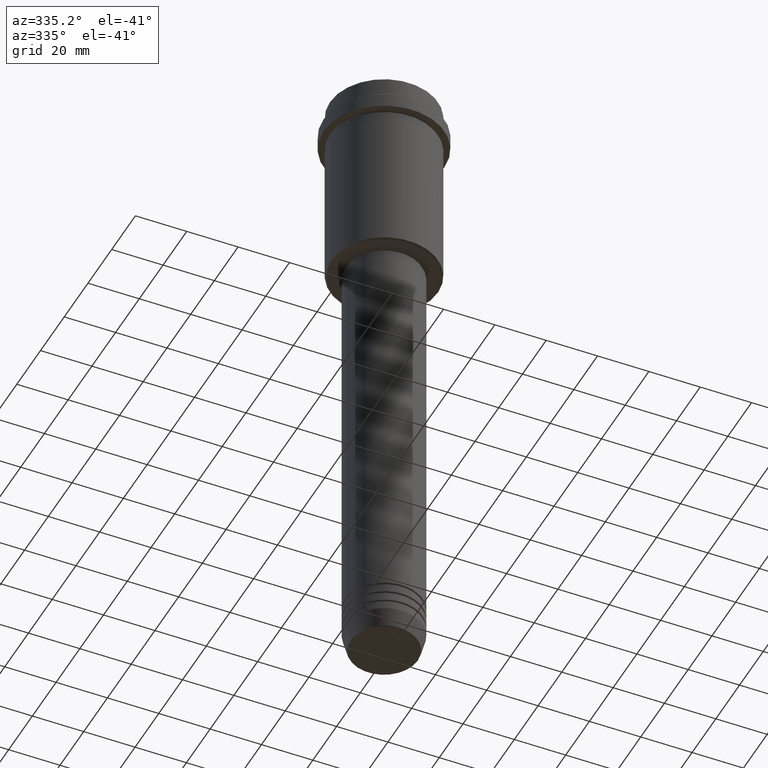
[diagram: clean part render]
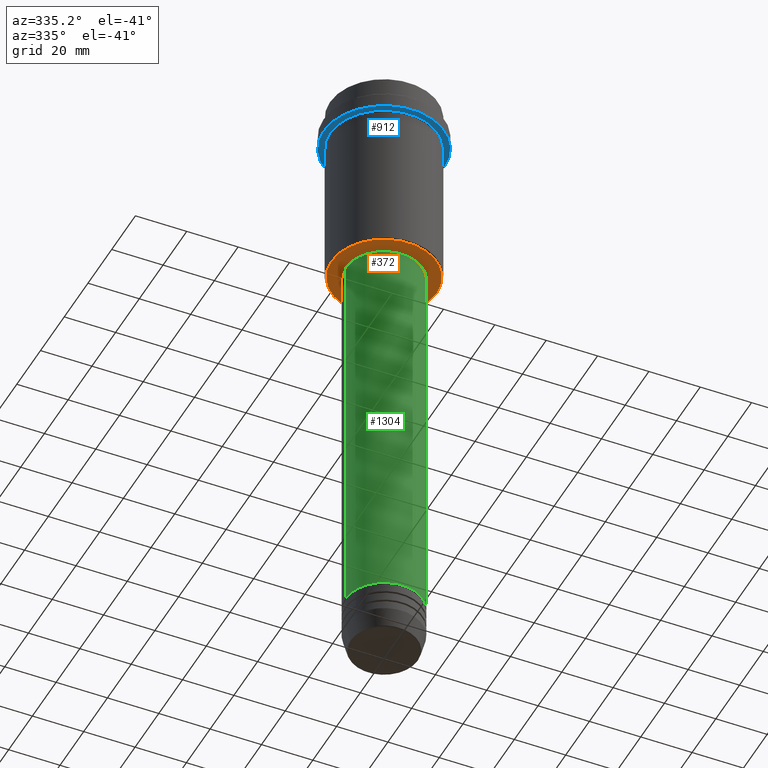
[diagram: same view with three faces highlighted in distinct colors, each labeled with its STEP entity id]
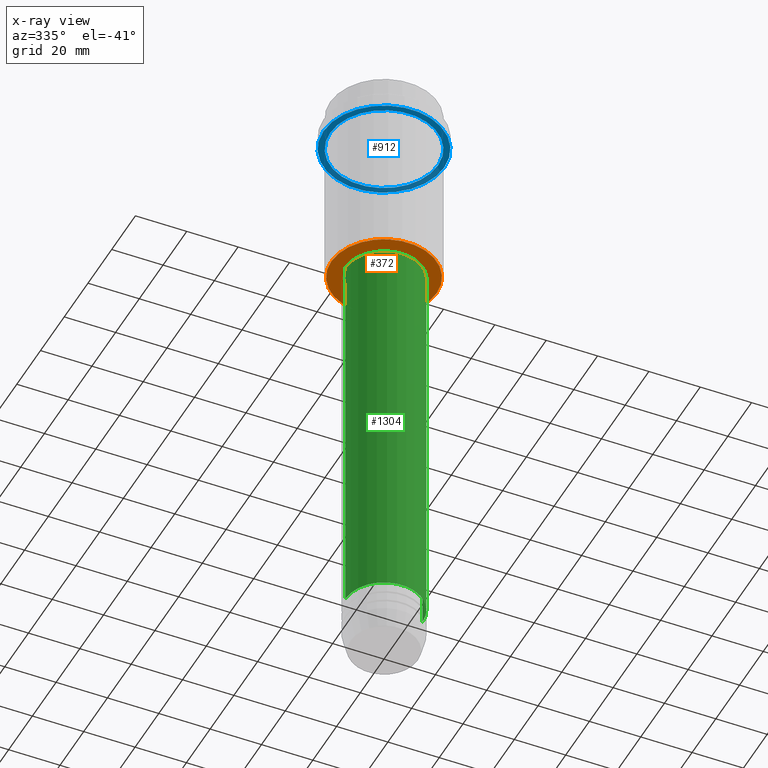
[diagram: x-ray of the same camera — body ghosted, the three highlighted faces saturated]
A machine part, auxiliary view with three faces highlighted in distinct colors.
The next image is the same camera in x-ray (body ghosted, the three faces saturated) — at least one of them is partly hidden behind the body in this view.
Their STEP definitions:

[orange] entity #372 — the highlighted planar face has unit normal (0, 0, -1).
#10 = ORIENTED_EDGE ( 'NONE', *, *, #104, .T. ) ;
#46 = DIRECTION ( 'NONE',  ( -1.000000000000000000, 0.000000000000000000, 0.000000000000000000 ) ) ;
#82 = AXIS2_PLACEMENT_3D ( 'NONE', #1362, #1368, #46 ) ;
#100 = AXIS2_PLACEMENT_3D ( 'NONE', #1037, #927, #1140 ) ;
#104 = EDGE_CURVE ( 'NONE', #847, #641, #153, .T. ) ;
#119 = EDGE_CURVE ( 'NONE', #641, #847, #720, .T. ) ;
#120 = DIRECTION ( 'NONE',  ( 1.000000000000000000, 0.000000000000000000, 0.000000000000000000 ) ) ;
#153 = CIRCLE ( 'NONE', #259, 14.49999999999999467 ) ;
#208 = EDGE_CURVE ( 'NONE', #826, #721, #1279, .T. ) ;
#259 = AXIS2_PLACEMENT_3D ( 'NONE', #664, #1105, #120 ) ;
#260 = CARTESIAN_POINT ( 'NONE',  ( -14.49999999999999467, 1.775737858763661620E-15, -75.00000000000001421 ) ) ;
#292 = ORIENTED_EDGE ( 'NONE', *, *, #208, .T. ) ;
#314 = EDGE_LOOP ( 'NONE', ( #10, #897 ) ) ;
#321 = CARTESIAN_POINT ( 'NONE',  ( 14.49999999999999467, 0.000000000000000000, -75.00000000000001421 ) ) ;
#350 = AXIS2_PLACEMENT_3D ( 'NONE', #1390, #510, #989 ) ;
#372 = ADVANCED_FACE ( 'NONE', ( #960, #1079 ), #1398, .T. ) ;
#402 = CIRCLE ( 'NONE', #631, 20.49999999999998934 ) ;
#436 = CARTESIAN_POINT ( 'NONE',  ( 20.49999999999998934, 0.000000000000000000, -75.00000000000001421 ) ) ;
#510 = DIRECTION ( 'NONE',  ( 0.000000000000000000, 0.000000000000000000, -1.000000000000000000 ) ) ;
#532 = EDGE_CURVE ( 'NONE', #721, #826, #402, .T. ) ;
#629 = CARTESIAN_POINT ( 'NONE',  ( -20.49999999999998934, 2.541142108230757480E-15, -75.00000000000001421 ) ) ;
#631 = AXIS2_PLACEMENT_3D ( 'NONE', #799, #1004, #1222 ) ;
#641 = VERTEX_POINT ( 'NONE', #260 ) ;
#660 = EDGE_LOOP ( 'NONE', ( #292, #1405 ) ) ;
#664 = CARTESIAN_POINT ( 'NONE',  ( 0.000000000000000000, 0.000000000000000000, -75.00000000000001421 ) ) ;
#720 = CIRCLE ( 'NONE', #100, 14.49999999999999467 ) ;
#721 = VERTEX_POINT ( 'NONE', #629 ) ;
#799 = CARTESIAN_POINT ( 'NONE',  ( 0.000000000000000000, 0.000000000000000000, -75.00000000000001421 ) ) ;
#826 = VERTEX_POINT ( 'NONE', #436 ) ;
#847 = VERTEX_POINT ( 'NONE', #321 ) ;
#897 = ORIENTED_EDGE ( 'NONE', *, *, #119, .T. ) ;
#927 = DIRECTION ( 'NONE',  ( -0.000000000000000000, -0.000000000000000000, 1.000000000000000000 ) ) ;
#960 = FACE_OUTER_BOUND ( 'NONE', #660, .T. ) ;
#989 = DIRECTION ( 'NONE',  ( -1.000000000000000000, 0.000000000000000000, -0.000000000000000000 ) ) ;
#1004 = DIRECTION ( 'NONE',  ( 0.000000000000000000, 0.000000000000000000, -1.000000000000000000 ) ) ;
#1037 = CARTESIAN_POINT ( 'NONE',  ( 0.000000000000000000, 0.000000000000000000, -75.00000000000001421 ) ) ;
#1079 = FACE_BOUND ( 'NONE', #314, .T. ) ;
#1105 = DIRECTION ( 'NONE',  ( -0.000000000000000000, -0.000000000000000000, 1.000000000000000000 ) ) ;
#1140 = DIRECTION ( 'NONE',  ( 1.000000000000000000, 0.000000000000000000, 0.000000000000000000 ) ) ;
#1222 = DIRECTION ( 'NONE',  ( -1.000000000000000000, 0.000000000000000000, 0.000000000000000000 ) ) ;
#1279 = CIRCLE ( 'NONE', #82, 20.49999999999998934 ) ;
#1362 = CARTESIAN_POINT ( 'NONE',  ( 0.000000000000000000, 0.000000000000000000, -75.00000000000001421 ) ) ;
#1368 = DIRECTION ( 'NONE',  ( 0.000000000000000000, 0.000000000000000000, -1.000000000000000000 ) ) ;
#1390 = CARTESIAN_POINT ( 'NONE',  ( 0.000000000000000000, 21.00000000000000000, -75.00000000000001421 ) ) ;
#1398 = PLANE ( 'NONE',  #350 ) ;
#1405 = ORIENTED_EDGE ( 'NONE', *, *, #532, .T. ) ;

[blue] entity #912 — the highlighted planar face has unit normal (0, 0, -1).
#58 = VERTEX_POINT ( 'NONE', #326 ) ;
#127 = CARTESIAN_POINT ( 'NONE',  ( 20.99999999999999289, 2.571758278209440872E-15, -15.00000000000000178 ) ) ;
#135 = CARTESIAN_POINT ( 'NONE',  ( 23.50000000000000355, 0.000000000000000000, -15.00000000000000000 ) ) ;
#147 = DIRECTION ( 'NONE',  ( 0.000000000000000000, 0.000000000000000000, -1.000000000000000000 ) ) ;
#190 = EDGE_LOOP ( 'NONE', ( #1002, #617 ) ) ;
#191 = DIRECTION ( 'NONE',  ( -1.000000000000000000, 0.000000000000000000, 0.000000000000000000 ) ) ;
#204 = CARTESIAN_POINT ( 'NONE',  ( 0.000000000000000000, 0.000000000000000000, -15.00000000000000000 ) ) ;
#223 = DIRECTION ( 'NONE',  ( -1.000000000000000000, 0.000000000000000000, -0.000000000000000000 ) ) ;
#262 = AXIS2_PLACEMENT_3D ( 'NONE', #566, #147, #223 ) ;
#263 = CIRCLE ( 'NONE', #905, 20.99999999999999289 ) ;
#296 = CARTESIAN_POINT ( 'NONE',  ( 0.000000000000000000, 0.000000000000000000, -15.00000000000000178 ) ) ;
#325 = CIRCLE ( 'NONE', #467, 20.99999999999999289 ) ;
#326 = CARTESIAN_POINT ( 'NONE',  ( -23.50000000000000711, 2.877919977996281109E-15, -15.00000000000000000 ) ) ;
#358 = EDGE_CURVE ( 'NONE', #1276, #486, #325, .T. ) ;
#435 = DIRECTION ( 'NONE',  ( -0.000000000000000000, -0.000000000000000000, 1.000000000000000000 ) ) ;
#467 = AXIS2_PLACEMENT_3D ( 'NONE', #503, #1175, #610 ) ;
#486 = VERTEX_POINT ( 'NONE', #127 ) ;
#503 = CARTESIAN_POINT ( 'NONE',  ( 0.000000000000000000, 0.000000000000000000, -15.00000000000000178 ) ) ;
#512 = CARTESIAN_POINT ( 'NONE',  ( -20.99999999999999289, 0.000000000000000000, -15.00000000000000178 ) ) ;
#535 = CARTESIAN_POINT ( 'NONE',  ( 0.000000000000000000, 0.000000000000000000, -15.00000000000000000 ) ) ;
#547 = DIRECTION ( 'NONE',  ( -0.000000000000000000, -0.000000000000000000, 1.000000000000000000 ) ) ;
#551 = FACE_OUTER_BOUND ( 'NONE', #190, .T. ) ;
#566 = CARTESIAN_POINT ( 'NONE',  ( 0.000000000000000000, 23.50000000000000355, -15.00000000000000178 ) ) ;
#610 = DIRECTION ( 'NONE',  ( -1.000000000000000000, 0.000000000000000000, 0.000000000000000000 ) ) ;
#617 = ORIENTED_EDGE ( 'NONE', *, *, #1205, .F. ) ;
#749 = EDGE_CURVE ( 'NONE', #911, #58, #786, .T. ) ;
#751 = DIRECTION ( 'NONE',  ( -0.000000000000000000, -0.000000000000000000, 1.000000000000000000 ) ) ;
#766 = CIRCLE ( 'NONE', #1345, 23.50000000000000355 ) ;
#786 = CIRCLE ( 'NONE', #1411, 23.50000000000000355 ) ;
#874 = PLANE ( 'NONE',  #262 ) ;
#905 = AXIS2_PLACEMENT_3D ( 'NONE', #296, #435, #191 ) ;
#911 = VERTEX_POINT ( 'NONE', #135 ) ;
#912 = ADVANCED_FACE ( 'NONE', ( #1003, #551 ), #874, .T. ) ;
#1002 = ORIENTED_EDGE ( 'NONE', *, *, #749, .F. ) ;
#1003 = FACE_BOUND ( 'NONE', #1237, .T. ) ;
#1071 = DIRECTION ( 'NONE',  ( 1.000000000000000000, 0.000000000000000000, 0.000000000000000000 ) ) ;
#1120 = ORIENTED_EDGE ( 'NONE', *, *, #358, .T. ) ;
#1175 = DIRECTION ( 'NONE',  ( -0.000000000000000000, -0.000000000000000000, 1.000000000000000000 ) ) ;
#1178 = DIRECTION ( 'NONE',  ( 1.000000000000000000, 0.000000000000000000, 0.000000000000000000 ) ) ;
#1205 = EDGE_CURVE ( 'NONE', #58, #911, #766, .T. ) ;
#1237 = EDGE_LOOP ( 'NONE', ( #1120, #1376 ) ) ;
#1240 = EDGE_CURVE ( 'NONE', #486, #1276, #263, .T. ) ;
#1276 = VERTEX_POINT ( 'NONE', #512 ) ;
#1345 = AXIS2_PLACEMENT_3D ( 'NONE', #204, #751, #1178 ) ;
#1376 = ORIENTED_EDGE ( 'NONE', *, *, #1240, .T. ) ;
#1411 = AXIS2_PLACEMENT_3D ( 'NONE', #535, #547, #1071 ) ;

[green] entity #1304 — the highlighted cylindrical surface (partial cylindrical patch) has radius 15 mm, axis along (-0, -0, 1).
#24 = DIRECTION ( 'NONE',  ( 1.000000000000000000, 0.000000000000000000, 0.000000000000000000 ) ) ;
#35 = ORIENTED_EDGE ( 'NONE', *, *, #736, .T. ) ;
#37 = CARTESIAN_POINT ( 'NONE',  ( 0.000000000000000000, 0.000000000000000000, 0.000000000000000000 ) ) ;
#52 = CARTESIAN_POINT ( 'NONE',  ( -15.00000000000000000, 1.836970198721029589E-15, -230.9999999999998863 ) ) ;
#113 = EDGE_LOOP ( 'NONE', ( #654, #35, #1263, #360 ) ) ;
#165 = CARTESIAN_POINT ( 'NONE',  ( 15.00000000000000000, 0.000000000000000000, -76.00000000000001421 ) ) ;
#170 = VERTEX_POINT ( 'NONE', #52 ) ;
#226 = EDGE_CURVE ( 'NONE', #170, #944, #718, .T. ) ;
#247 = LINE ( 'NONE', #792, #1342 ) ;
#311 = CARTESIAN_POINT ( 'NONE',  ( 0.000000000000000000, 0.000000000000000000, -230.9999999999998863 ) ) ;
#356 = CARTESIAN_POINT ( 'NONE',  ( 0.000000000000000000, 0.000000000000000000, -76.00000000000001421 ) ) ;
#360 = ORIENTED_EDGE ( 'NONE', *, *, #508, .F. ) ;
#362 = DIRECTION ( 'NONE',  ( -0.000000000000000000, -0.000000000000000000, 1.000000000000000000 ) ) ;
#465 = EDGE_CURVE ( 'NONE', #883, #1040, #247, .T. ) ;
#477 = CARTESIAN_POINT ( 'NONE',  ( -15.00000000000000000, 1.836970198721029589E-15, 0.000000000000000000 ) ) ;
#508 = EDGE_CURVE ( 'NONE', #944, #1040, #1282, .T. ) ;
#578 = AXIS2_PLACEMENT_3D ( 'NONE', #356, #362, #1122 ) ;
#608 = CIRCLE ( 'NONE', #859, 15.00000000000000000 ) ;
#645 = DIRECTION ( 'NONE',  ( 1.000000000000000000, 0.000000000000000000, 0.000000000000000000 ) ) ;
#654 = ORIENTED_EDGE ( 'NONE', *, *, #226, .F. ) ;
#718 = LINE ( 'NONE', #477, #1389 ) ;
#736 = EDGE_CURVE ( 'NONE', #170, #883, #608, .T. ) ;
#739 = FACE_OUTER_BOUND ( 'NONE', #113, .T. ) ;
#779 = CYLINDRICAL_SURFACE ( 'NONE', #1119, 15.00000000000000000 ) ;
#783 = DIRECTION ( 'NONE',  ( -0.000000000000000000, -0.000000000000000000, 1.000000000000000000 ) ) ;
#792 = CARTESIAN_POINT ( 'NONE',  ( 15.00000000000000000, 0.000000000000000000, 0.000000000000000000 ) ) ;
#859 = AXIS2_PLACEMENT_3D ( 'NONE', #311, #1311, #645 ) ;
#881 = DIRECTION ( 'NONE',  ( -0.000000000000000000, -0.000000000000000000, 1.000000000000000000 ) ) ;
#883 = VERTEX_POINT ( 'NONE', #1014 ) ;
#944 = VERTEX_POINT ( 'NONE', #1103 ) ;
#1011 = DIRECTION ( 'NONE',  ( -0.000000000000000000, -0.000000000000000000, 1.000000000000000000 ) ) ;
#1014 = CARTESIAN_POINT ( 'NONE',  ( 15.00000000000000000, 0.000000000000000000, -230.9999999999998863 ) ) ;
#1040 = VERTEX_POINT ( 'NONE', #165 ) ;
#1103 = CARTESIAN_POINT ( 'NONE',  ( -15.00000000000000000, 1.836970198721029589E-15, -76.00000000000001421 ) ) ;
#1119 = AXIS2_PLACEMENT_3D ( 'NONE', #37, #881, #24 ) ;
#1122 = DIRECTION ( 'NONE',  ( 1.000000000000000000, 0.000000000000000000, 0.000000000000000000 ) ) ;
#1263 = ORIENTED_EDGE ( 'NONE', *, *, #465, .T. ) ;
#1282 = CIRCLE ( 'NONE', #578, 15.00000000000000000 ) ;
#1304 = ADVANCED_FACE ( 'NONE', ( #739 ), #779, .T. ) ;
#1311 = DIRECTION ( 'NONE',  ( -0.000000000000000000, -0.000000000000000000, 1.000000000000000000 ) ) ;
#1342 = VECTOR ( 'NONE', #783, 1000.000000000000000 ) ;
#1389 = VECTOR ( 'NONE', #1011, 1000.000000000000000 ) ;